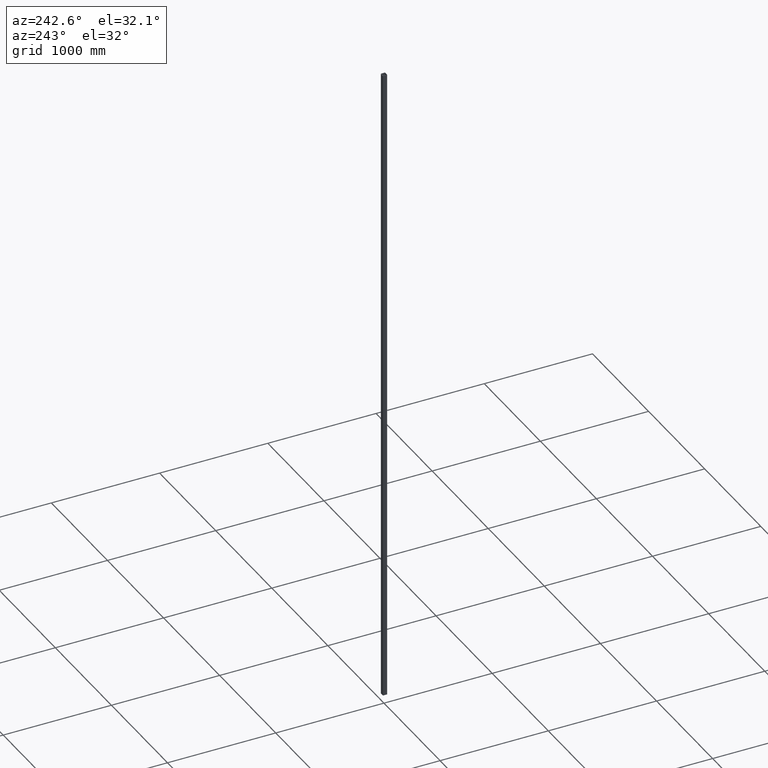
[diagram: clean part render]
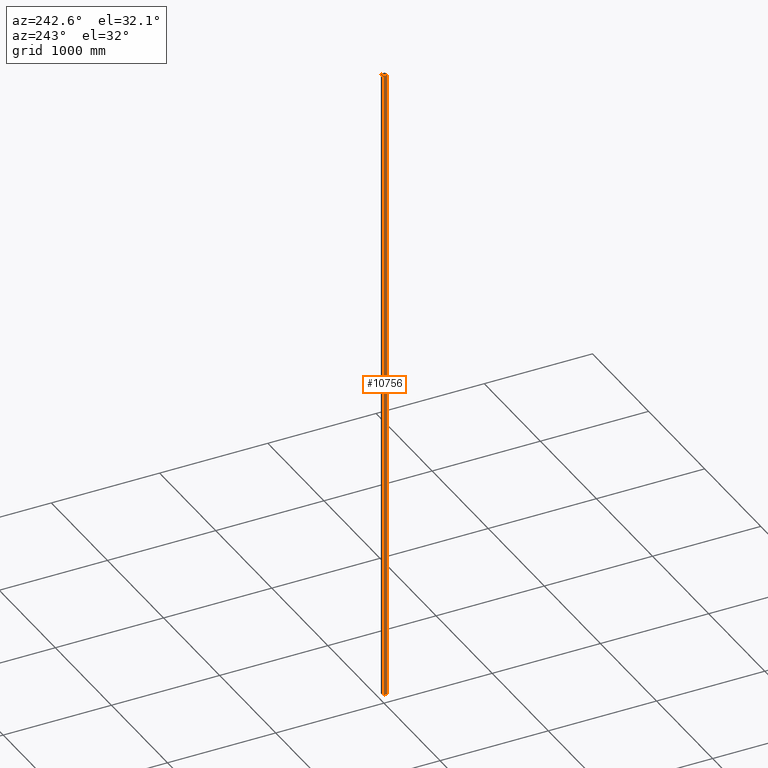
[diagram: same view with one face highlighted and labeled with its STEP entity id]
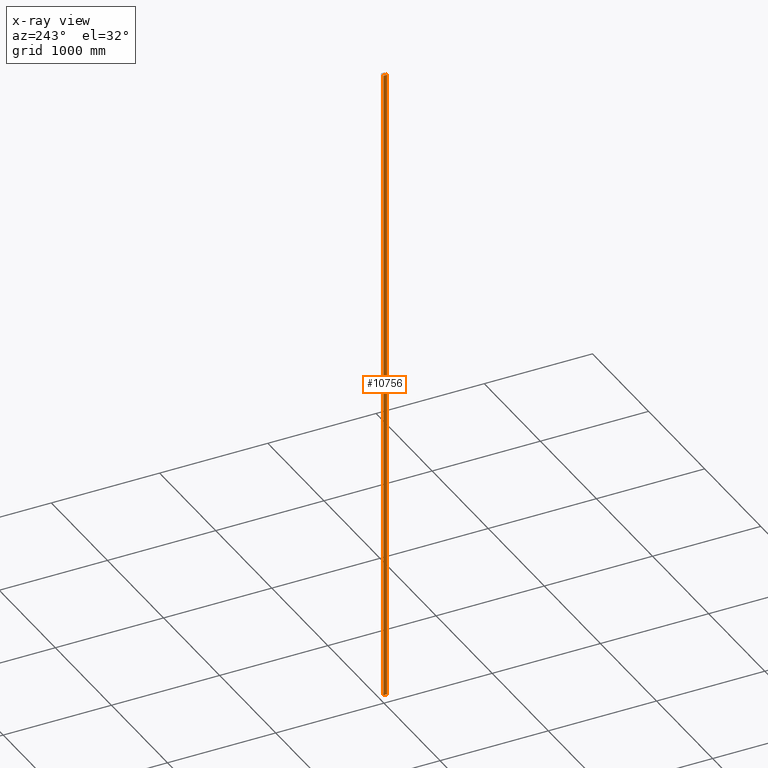
[diagram: x-ray of the same camera — body ghosted, the highlighted face saturated]
A machine part, auxiliary view. The second image highlights one B-rep face of the part: STEP entity #10756.
The next image is the same camera in x-ray: the body ghosted, the highlighted face saturated — about 0% of this face is hidden behind the body in this view.
In plain terms, the highlighted planar face has unit normal (1, 0, -0).
Its self-contained STEP definition (entity closure, byte-faithful):
#1266 = VECTOR ( 'NONE', #8851, 1000.000000000000000 ) ;
#1960 = LINE ( 'NONE', #4446, #1266 ) ;
#2093 = EDGE_CURVE ( 'NONE', #9306, #6179, #13826, .T. ) ;
#2124 = VECTOR ( 'NONE', #10180, 1000.000000000000000 ) ;
#2483 = CARTESIAN_POINT ( 'NONE',  ( -19.99999999999999645, 17.00000000000000000, 3000.000000000000000 ) ) ;
#3050 = EDGE_CURVE ( 'NONE', #11210, #9435, #1960, .T. ) ;
#3195 = EDGE_CURVE ( 'NONE', #6179, #9435, #10211, .T. ) ;
#3250 = EDGE_CURVE ( 'NONE', #9306, #11210, #13627, .T. ) ;
#3642 = DIRECTION ( 'NONE',  ( -0.000000000000000000, -0.000000000000000000, -1.000000000000000000 ) ) ;
#4446 = CARTESIAN_POINT ( 'NONE',  ( -19.99999999999999645, 17.00000000000000000, -3000.000000000000000 ) ) ;
#5215 = VECTOR ( 'NONE', #3642, 1000.000000000000000 ) ;
#5877 = FACE_OUTER_BOUND ( 'NONE', #8631, .T. ) ;
#6179 = VERTEX_POINT ( 'NONE', #8530 ) ;
#6374 = CARTESIAN_POINT ( 'NONE',  ( -19.99999999999999645, -17.00000000000000000, -3000.000000000000000 ) ) ;
#7389 = CARTESIAN_POINT ( 'NONE',  ( -19.99999999999999645, 17.00000000000000000, 3000.000000000000000 ) ) ;
#8000 = VECTOR ( 'NONE', #12988, 1000.000000000000000 ) ;
#8003 = ORIENTED_EDGE ( 'NONE', *, *, #3195, .F. ) ;
#8397 = ORIENTED_EDGE ( 'NONE', *, *, #3250, .T. ) ;
#8530 = CARTESIAN_POINT ( 'NONE',  ( -19.99999999999999645, -17.00000000000000000, 3000.000000000000000 ) ) ;
#8631 = EDGE_LOOP ( 'NONE', ( #12056, #8003, #9818, #8397 ) ) ;
#8698 = DIRECTION ( 'NONE',  ( 1.000000000000000000, 0.000000000000000000, -0.000000000000000000 ) ) ;
#8851 = DIRECTION ( 'NONE',  ( 0.000000000000000000, -1.000000000000000000, 0.000000000000000000 ) ) ;
#9306 = VERTEX_POINT ( 'NONE', #10622 ) ;
#9435 = VERTEX_POINT ( 'NONE', #6374 ) ;
#9738 = CARTESIAN_POINT ( 'NONE',  ( -19.99999999999999645, 17.00000000000000000, 3000.000000000000000 ) ) ;
#9818 = ORIENTED_EDGE ( 'NONE', *, *, #2093, .F. ) ;
#9919 = DIRECTION ( 'NONE',  ( -0.000000000000000000, 0.000000000000000000, -1.000000000000000000 ) ) ;
#9974 = AXIS2_PLACEMENT_3D ( 'NONE', #9738, #8698, #9919 ) ;
#10180 = DIRECTION ( 'NONE',  ( -0.000000000000000000, -0.000000000000000000, -1.000000000000000000 ) ) ;
#10211 = LINE ( 'NONE', #13482, #5215 ) ;
#10622 = CARTESIAN_POINT ( 'NONE',  ( -19.99999999999999645, 17.00000000000000000, 3000.000000000000000 ) ) ;
#10756 = ADVANCED_FACE ( 'NONE', ( #5877 ), #12023, .F. ) ;
#11011 = CARTESIAN_POINT ( 'NONE',  ( -19.99999999999999645, 17.00000000000000000, -3000.000000000000000 ) ) ;
#11210 = VERTEX_POINT ( 'NONE', #11011 ) ;
#12023 = PLANE ( 'NONE',  #9974 ) ;
#12056 = ORIENTED_EDGE ( 'NONE', *, *, #3050, .T. ) ;
#12988 = DIRECTION ( 'NONE',  ( 0.000000000000000000, -1.000000000000000000, 0.000000000000000000 ) ) ;
#13482 = CARTESIAN_POINT ( 'NONE',  ( -19.99999999999999645, -17.00000000000000000, 3000.000000000000000 ) ) ;
#13627 = LINE ( 'NONE', #2483, #2124 ) ;
#13826 = LINE ( 'NONE', #7389, #8000 ) ;